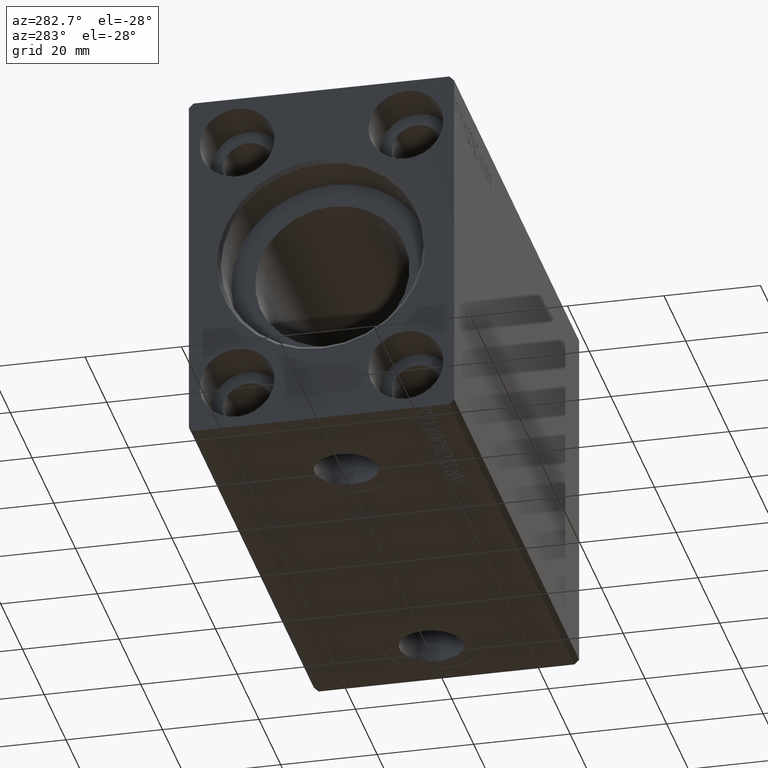
[diagram: clean part render]
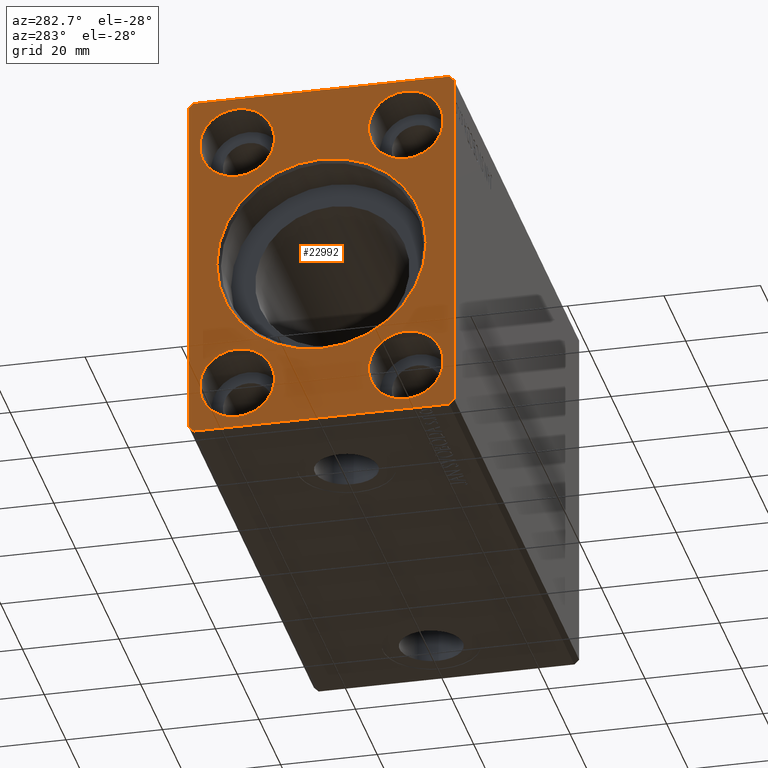
[diagram: same view with one face highlighted and labeled with its STEP entity id]
A machine part, auxiliary view. The second image highlights one B-rep face of the part: STEP entity #22992.
In plain terms, the highlighted planar face has unit normal (1, 0, 0).
Its self-contained STEP definition (entity closure, byte-faithful):
#441 = AXIS2_PLACEMENT_3D ( 'NONE', #37019, #36384, #29915 ) ;
#728 = ORIENTED_EDGE ( 'NONE', *, *, #31163, .F. ) ;
#1221 = FACE_BOUND ( 'NONE', #9845, .T. ) ;
#1316 = VERTEX_POINT ( 'NONE', #9007 ) ;
#1351 = VERTEX_POINT ( 'NONE', #38741 ) ;
#1455 = CARTESIAN_POINT ( 'NONE',  ( 0.000000000000000000, 26.50000000000000711, -37.49999999999999289 ) ) ;
#2135 = CIRCLE ( 'NONE', #13162, 21.70000000000003837 ) ;
#2273 = VECTOR ( 'NONE', #21379, 1000.000000000000000 ) ;
#3032 = LINE ( 'NONE', #22648, #19317 ) ;
#3040 = CIRCLE ( 'NONE', #22313, 7.750000000000003553 ) ;
#3172 = VERTEX_POINT ( 'NONE', #20948 ) ;
#3193 = EDGE_CURVE ( 'NONE', #13414, #1316, #4576, .T. ) ;
#3557 = DIRECTION ( 'NONE',  ( 1.000000000000000000, 0.000000000000000000, 0.000000000000000000 ) ) ;
#3619 = FACE_BOUND ( 'NONE', #37961, .T. ) ;
#3737 = DIRECTION ( 'NONE',  ( 0.000000000000000000, 0.7071067811865451302, -0.7071067811865500152 ) ) ;
#4052 = DIRECTION ( 'NONE',  ( -1.000000000000000000, 0.000000000000000000, 0.000000000000000000 ) ) ;
#4162 = EDGE_CURVE ( 'NONE', #8344, #13414, #30033, .T. ) ;
#4576 = LINE ( 'NONE', #37128, #2273 ) ;
#4969 = CARTESIAN_POINT ( 'NONE',  ( 0.000000000000000000, 0.000000000000000000, 0.000000000000000000 ) ) ;
#5129 = CARTESIAN_POINT ( 'NONE',  ( 0.000000000000000000, -17.50000000000000000, -35.25000000000000000 ) ) ;
#5669 = VECTOR ( 'NONE', #3737, 1000.000000000000114 ) ;
#5676 = CARTESIAN_POINT ( 'NONE',  ( 0.000000000000000000, 27.50000000000000711, -36.49999999999999289 ) ) ;
#5844 = ORIENTED_EDGE ( 'NONE', *, *, #4162, .F. ) ;
#5860 = CARTESIAN_POINT ( 'NONE',  ( 0.000000000000000000, -17.50000000000000000, -27.50000000000000000 ) ) ;
#6277 = CARTESIAN_POINT ( 'NONE',  ( 0.000000000000000000, 17.50000000000000000, 27.50000000000000000 ) ) ;
#6385 = CARTESIAN_POINT ( 'NONE',  ( 0.000000000000000000, 17.50000000000000000, 35.25000000000000000 ) ) ;
#6415 = CIRCLE ( 'NONE', #8468, 7.750000000000003553 ) ;
#6506 = EDGE_CURVE ( 'NONE', #33874, #9079, #6415, .T. ) ;
#6536 = ORIENTED_EDGE ( 'NONE', *, *, #16379, .T. ) ;
#6747 = EDGE_CURVE ( 'NONE', #12147, #34931, #34527, .T. ) ;
#6797 = CARTESIAN_POINT ( 'NONE',  ( 0.000000000000000000, 0.000000000000000000, 0.000000000000000000 ) ) ;
#6943 = EDGE_CURVE ( 'NONE', #14467, #8724, #31879, .T. ) ;
#6976 = CARTESIAN_POINT ( 'NONE',  ( 0.000000000000000000, 17.50000000000000000, 19.74999999999999645 ) ) ;
#7219 = DIRECTION ( 'NONE',  ( 0.000000000000000000, 0.000000000000000000, -1.000000000000000000 ) ) ;
#7670 = LINE ( 'NONE', #33746, #16163 ) ;
#8000 = AXIS2_PLACEMENT_3D ( 'NONE', #6797, #3557, #7219 ) ;
#8119 = VECTOR ( 'NONE', #29615, 1000.000000000000114 ) ;
#8344 = VERTEX_POINT ( 'NONE', #27396 ) ;
#8433 = ORIENTED_EDGE ( 'NONE', *, *, #9070, .F. ) ;
#8468 = AXIS2_PLACEMENT_3D ( 'NONE', #29920, #4052, #42629 ) ;
#8581 = DIRECTION ( 'NONE',  ( 0.000000000000000000, 0.7071067811865474617, 0.7071067811865474617 ) ) ;
#8724 = VERTEX_POINT ( 'NONE', #36585 ) ;
#8761 = DIRECTION ( 'NONE',  ( -1.000000000000000000, 0.000000000000000000, 0.000000000000000000 ) ) ;
#9007 = CARTESIAN_POINT ( 'NONE',  ( 0.000000000000000000, 26.50000000000000711, -37.49999999999999289 ) ) ;
#9070 = EDGE_CURVE ( 'NONE', #24901, #12147, #20729, .T. ) ;
#9079 = VERTEX_POINT ( 'NONE', #31499 ) ;
#9163 = CARTESIAN_POINT ( 'NONE',  ( 0.000000000000000000, -26.50000000000000711, 37.50000000000000711 ) ) ;
#9170 = ORIENTED_EDGE ( 'NONE', *, *, #9487, .F. ) ;
#9487 = EDGE_CURVE ( 'NONE', #9079, #33874, #3040, .T. ) ;
#9660 = CIRCLE ( 'NONE', #12414, 7.750000000000003553 ) ;
#9721 = DIRECTION ( 'NONE',  ( 0.000000000000000000, -1.000000000000000000, 0.000000000000000000 ) ) ;
#9845 = EDGE_LOOP ( 'NONE', ( #40430, #25641 ) ) ;
#10721 = PLANE ( 'NONE',  #441 ) ;
#11561 = EDGE_CURVE ( 'NONE', #1351, #8344, #7670, .T. ) ;
#12042 = VECTOR ( 'NONE', #8581, 1000.000000000000114 ) ;
#12147 = VERTEX_POINT ( 'NONE', #13775 ) ;
#12255 = EDGE_CURVE ( 'NONE', #1316, #24901, #30997, .T. ) ;
#12414 = AXIS2_PLACEMENT_3D ( 'NONE', #39536, #39126, #22744 ) ;
#12589 = EDGE_CURVE ( 'NONE', #8724, #14467, #42332, .T. ) ;
#12924 = ORIENTED_EDGE ( 'NONE', *, *, #38237, .T. ) ;
#13162 = AXIS2_PLACEMENT_3D ( 'NONE', #4969, #20706, #21563 ) ;
#13414 = VERTEX_POINT ( 'NONE', #37853 ) ;
#13760 = ORIENTED_EDGE ( 'NONE', *, *, #41287, .T. ) ;
#13775 = CARTESIAN_POINT ( 'NONE',  ( 0.000000000000000000, 27.50000000000000355, 36.50000000000000711 ) ) ;
#13796 = ORIENTED_EDGE ( 'NONE', *, *, #6506, .F. ) ;
#14226 = ORIENTED_EDGE ( 'NONE', *, *, #37682, .T. ) ;
#14467 = VERTEX_POINT ( 'NONE', #5129 ) ;
#14737 = VECTOR ( 'NONE', #30646, 1000.000000000000000 ) ;
#16163 = VECTOR ( 'NONE', #30512, 1000.000000000000000 ) ;
#16261 = ORIENTED_EDGE ( 'NONE', *, *, #11561, .F. ) ;
#16379 = EDGE_CURVE ( 'NONE', #3172, #34210, #38978, .T. ) ;
#16429 = CIRCLE ( 'NONE', #35694, 7.750000000000003553 ) ;
#16766 = FACE_BOUND ( 'NONE', #30753, .T. ) ;
#16880 = CARTESIAN_POINT ( 'NONE',  ( 0.000000000000000000, -27.50000000000000355, -36.49999999999998579 ) ) ;
#16885 = CARTESIAN_POINT ( 'NONE',  ( 0.000000000000000000, 17.50000000000000000, -27.50000000000000000 ) ) ;
#17311 = DIRECTION ( 'NONE',  ( -1.000000000000000000, 0.000000000000000000, 0.000000000000000000 ) ) ;
#17392 = VERTEX_POINT ( 'NONE', #22499 ) ;
#18794 = VERTEX_POINT ( 'NONE', #6976 ) ;
#18830 = DIRECTION ( 'NONE',  ( -1.000000000000000000, 0.000000000000000000, 0.000000000000000000 ) ) ;
#19154 = CARTESIAN_POINT ( 'NONE',  ( 0.000000000000000000, -17.50000000000000000, 35.25000000000000000 ) ) ;
#19317 = VECTOR ( 'NONE', #9721, 1000.000000000000000 ) ;
#19427 = DIRECTION ( 'NONE',  ( 0.000000000000000000, 0.000000000000000000, -1.000000000000000000 ) ) ;
#20582 = CARTESIAN_POINT ( 'NONE',  ( 0.000000000000000000, 26.50000000000000355, 37.50000000000000711 ) ) ;
#20706 = DIRECTION ( 'NONE',  ( 1.000000000000000000, 0.000000000000000000, 0.000000000000000000 ) ) ;
#20729 = LINE ( 'NONE', #41397, #14737 ) ;
#20849 = ORIENTED_EDGE ( 'NONE', *, *, #6747, .F. ) ;
#20948 = CARTESIAN_POINT ( 'NONE',  ( 0.000000000000000000, 0.000000000000000000, 21.70000000000003837 ) ) ;
#21318 = ORIENTED_EDGE ( 'NONE', *, *, #6943, .T. ) ;
#21379 = DIRECTION ( 'NONE',  ( 0.000000000000000000, 1.000000000000000000, 0.000000000000000000 ) ) ;
#21485 = CARTESIAN_POINT ( 'NONE',  ( 0.000000000000000000, -17.50000000000000000, 27.50000000000000000 ) ) ;
#21563 = DIRECTION ( 'NONE',  ( 0.000000000000000000, 0.000000000000000000, -1.000000000000000000 ) ) ;
#21813 = CARTESIAN_POINT ( 'NONE',  ( 0.000000000000000000, 27.50000000000000355, 36.50000000000000711 ) ) ;
#21854 = CARTESIAN_POINT ( 'NONE',  ( 0.000000000000000000, 17.50000000000000000, -27.50000000000000000 ) ) ;
#22313 = AXIS2_PLACEMENT_3D ( 'NONE', #21485, #8761, #34624 ) ;
#22499 = CARTESIAN_POINT ( 'NONE',  ( 0.000000000000000000, 17.50000000000000000, -19.74999999999999645 ) ) ;
#22648 = CARTESIAN_POINT ( 'NONE',  ( 0.000000000000000000, 26.50000000000000355, 37.50000000000000711 ) ) ;
#22744 = DIRECTION ( 'NONE',  ( 0.000000000000000000, 0.000000000000000000, -1.000000000000000000 ) ) ;
#22992 = ADVANCED_FACE ( 'NONE', ( #40656, #1221, #3619, #30553, #16766, #23225 ), #10721, .F. ) ;
#23225 = FACE_BOUND ( 'NONE', #35634, .T. ) ;
#23265 = ORIENTED_EDGE ( 'NONE', *, *, #3193, .F. ) ;
#24901 = VERTEX_POINT ( 'NONE', #5676 ) ;
#25125 = DIRECTION ( 'NONE',  ( 1.000000000000000000, -0.000000000000000000, -0.000000000000000000 ) ) ;
#25641 = ORIENTED_EDGE ( 'NONE', *, *, #28638, .F. ) ;
#25763 = DIRECTION ( 'NONE',  ( 0.000000000000000000, 0.000000000000000000, -1.000000000000000000 ) ) ;
#26177 = VERTEX_POINT ( 'NONE', #35590 ) ;
#26399 = ORIENTED_EDGE ( 'NONE', *, *, #38965, .F. ) ;
#27396 = CARTESIAN_POINT ( 'NONE',  ( 0.000000000000000000, -27.50000000000000355, -36.49999999999998579 ) ) ;
#28063 = DIRECTION ( 'NONE',  ( 0.000000000000000000, -0.7071067811865474617, 0.7071067811865474617 ) ) ;
#28638 = EDGE_CURVE ( 'NONE', #26177, #17392, #16429, .T. ) ;
#28974 = DIRECTION ( 'NONE',  ( 0.000000000000000000, 0.000000000000000000, 1.000000000000000000 ) ) ;
#28984 = CARTESIAN_POINT ( 'NONE',  ( 0.000000000000000000, 2.657483554149761471E-15, -21.70000000000003837 ) ) ;
#29615 = DIRECTION ( 'NONE',  ( 0.000000000000000000, -0.7071067811865474617, -0.7071067811865474617 ) ) ;
#29915 = DIRECTION ( 'NONE',  ( 0.000000000000000000, 0.000000000000000000, -1.000000000000000000 ) ) ;
#29920 = CARTESIAN_POINT ( 'NONE',  ( 0.000000000000000000, -17.50000000000000000, 27.50000000000000000 ) ) ;
#30033 = LINE ( 'NONE', #16880, #5669 ) ;
#30512 = DIRECTION ( 'NONE',  ( 0.000000000000000000, 4.752667057470705491E-17, -1.000000000000000000 ) ) ;
#30553 = FACE_OUTER_BOUND ( 'NONE', #40425, .T. ) ;
#30646 = DIRECTION ( 'NONE',  ( 0.000000000000000000, -4.752667057470704875E-17, 1.000000000000000000 ) ) ;
#30753 = EDGE_LOOP ( 'NONE', ( #36484, #21318 ) ) ;
#30997 = LINE ( 'NONE', #1455, #12042 ) ;
#31043 = EDGE_LOOP ( 'NONE', ( #13796, #9170 ) ) ;
#31163 = EDGE_CURVE ( 'NONE', #38309, #1351, #35446, .T. ) ;
#31323 = AXIS2_PLACEMENT_3D ( 'NONE', #38693, #25125, #25763 ) ;
#31499 = CARTESIAN_POINT ( 'NONE',  ( 0.000000000000000000, -17.50000000000000000, 19.74999999999999645 ) ) ;
#31879 = CIRCLE ( 'NONE', #37380, 7.750000000000003553 ) ;
#32789 = DIRECTION ( 'NONE',  ( 1.000000000000000000, -0.000000000000000000, -0.000000000000000000 ) ) ;
#33484 = DIRECTION ( 'NONE',  ( 0.000000000000000000, 0.000000000000000000, 1.000000000000000000 ) ) ;
#33744 = CIRCLE ( 'NONE', #38550, 7.750000000000003553 ) ;
#33746 = CARTESIAN_POINT ( 'NONE',  ( 0.000000000000000000, -27.50000000000000711, 36.50000000000000711 ) ) ;
#33874 = VERTEX_POINT ( 'NONE', #19154 ) ;
#34210 = VERTEX_POINT ( 'NONE', #28984 ) ;
#34527 = LINE ( 'NONE', #21813, #38767 ) ;
#34624 = DIRECTION ( 'NONE',  ( 0.000000000000000000, 0.000000000000000000, 1.000000000000000000 ) ) ;
#34931 = VERTEX_POINT ( 'NONE', #20582 ) ;
#35446 = LINE ( 'NONE', #9163, #8119 ) ;
#35590 = CARTESIAN_POINT ( 'NONE',  ( 0.000000000000000000, 17.50000000000000000, -35.25000000000000000 ) ) ;
#35634 = EDGE_LOOP ( 'NONE', ( #12924, #14226 ) ) ;
#35694 = AXIS2_PLACEMENT_3D ( 'NONE', #21854, #18830, #28974 ) ;
#35877 = AXIS2_PLACEMENT_3D ( 'NONE', #16885, #17311, #33484 ) ;
#36384 = DIRECTION ( 'NONE',  ( 1.000000000000000000, 0.000000000000000000, 0.000000000000000000 ) ) ;
#36484 = ORIENTED_EDGE ( 'NONE', *, *, #12589, .T. ) ;
#36585 = CARTESIAN_POINT ( 'NONE',  ( 0.000000000000000000, -17.50000000000000000, -19.74999999999999645 ) ) ;
#36846 = DIRECTION ( 'NONE',  ( 1.000000000000000000, -0.000000000000000000, -0.000000000000000000 ) ) ;
#37019 = CARTESIAN_POINT ( 'NONE',  ( 0.000000000000000000, 0.000000000000000000, 0.000000000000000000 ) ) ;
#37112 = ORIENTED_EDGE ( 'NONE', *, *, #12255, .F. ) ;
#37128 = CARTESIAN_POINT ( 'NONE',  ( 0.000000000000000000, -26.50000000000000355, -37.49999999999999289 ) ) ;
#37380 = AXIS2_PLACEMENT_3D ( 'NONE', #5860, #32789, #19427 ) ;
#37682 = EDGE_CURVE ( 'NONE', #18794, #39748, #9660, .T. ) ;
#37853 = CARTESIAN_POINT ( 'NONE',  ( 0.000000000000000000, -26.50000000000000355, -37.49999999999999289 ) ) ;
#37961 = EDGE_LOOP ( 'NONE', ( #6536, #13760 ) ) ;
#38237 = EDGE_CURVE ( 'NONE', #39748, #18794, #33744, .T. ) ;
#38309 = VERTEX_POINT ( 'NONE', #40274 ) ;
#38550 = AXIS2_PLACEMENT_3D ( 'NONE', #6277, #36846, #39860 ) ;
#38693 = CARTESIAN_POINT ( 'NONE',  ( 0.000000000000000000, -17.50000000000000000, -27.50000000000000000 ) ) ;
#38741 = CARTESIAN_POINT ( 'NONE',  ( 0.000000000000000000, -27.50000000000000711, 36.50000000000000711 ) ) ;
#38767 = VECTOR ( 'NONE', #28063, 1000.000000000000114 ) ;
#38965 = EDGE_CURVE ( 'NONE', #34931, #38309, #3032, .T. ) ;
#38978 = CIRCLE ( 'NONE', #8000, 21.70000000000003837 ) ;
#39126 = DIRECTION ( 'NONE',  ( 1.000000000000000000, -0.000000000000000000, -0.000000000000000000 ) ) ;
#39536 = CARTESIAN_POINT ( 'NONE',  ( 0.000000000000000000, 17.50000000000000000, 27.50000000000000000 ) ) ;
#39748 = VERTEX_POINT ( 'NONE', #6385 ) ;
#39860 = DIRECTION ( 'NONE',  ( 0.000000000000000000, 0.000000000000000000, -1.000000000000000000 ) ) ;
#39976 = CIRCLE ( 'NONE', #35877, 7.750000000000003553 ) ;
#40274 = CARTESIAN_POINT ( 'NONE',  ( 0.000000000000000000, -26.50000000000000711, 37.50000000000000711 ) ) ;
#40425 = EDGE_LOOP ( 'NONE', ( #20849, #8433, #37112, #23265, #5844, #16261, #728, #26399 ) ) ;
#40430 = ORIENTED_EDGE ( 'NONE', *, *, #40896, .F. ) ;
#40656 = FACE_BOUND ( 'NONE', #31043, .T. ) ;
#40896 = EDGE_CURVE ( 'NONE', #17392, #26177, #39976, .T. ) ;
#41287 = EDGE_CURVE ( 'NONE', #34210, #3172, #2135, .T. ) ;
#41397 = CARTESIAN_POINT ( 'NONE',  ( 0.000000000000000000, 27.50000000000000711, -36.49999999999999289 ) ) ;
#42332 = CIRCLE ( 'NONE', #31323, 7.750000000000003553 ) ;
#42629 = DIRECTION ( 'NONE',  ( 0.000000000000000000, 0.000000000000000000, 1.000000000000000000 ) ) ;